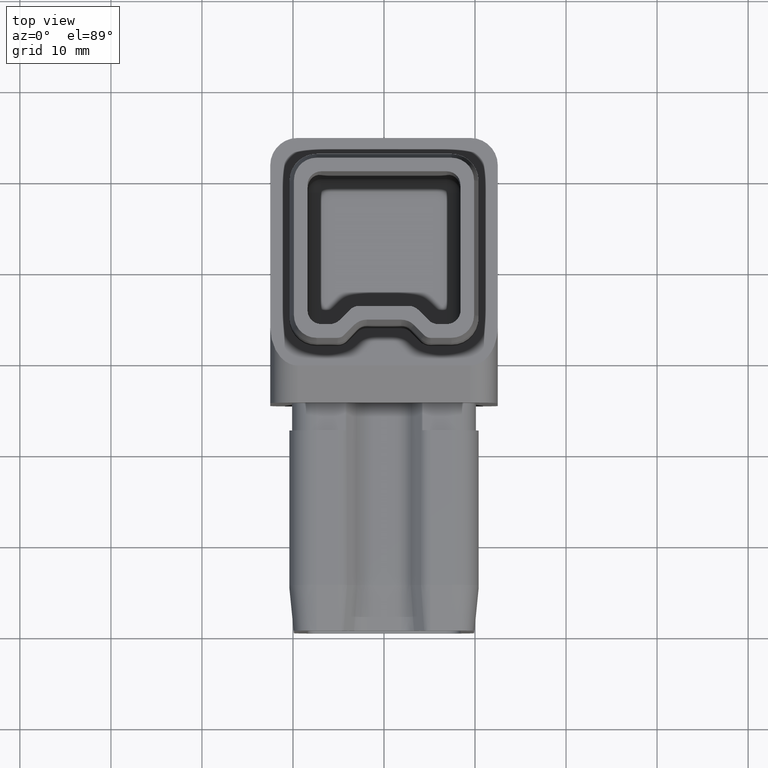
[diagram: clean part render]
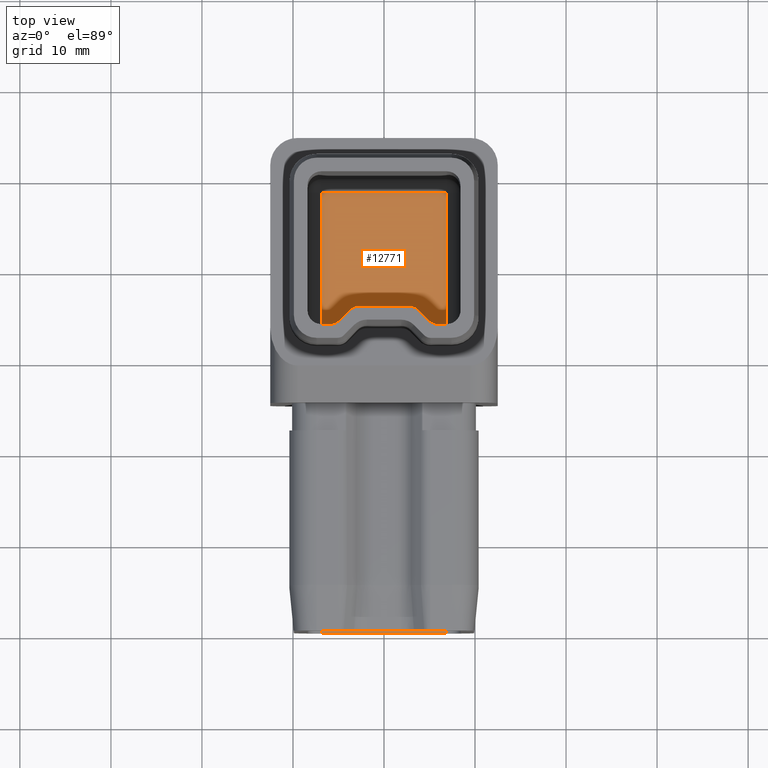
[diagram: same view with one face highlighted and labeled with its STEP entity id]
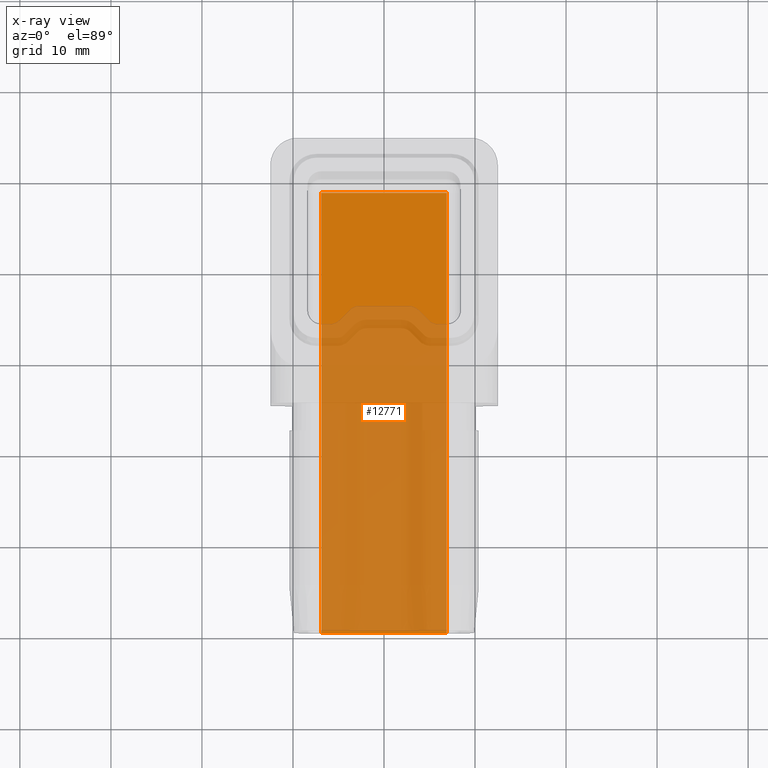
[diagram: x-ray of the same camera — body ghosted, the highlighted face saturated]
A machine part, top view. The second image highlights one B-rep face of the part: STEP entity #12771.
The next image is the same camera in x-ray: the body ghosted, the highlighted face saturated — about 72% of this face is hidden behind the body in this view.
In plain terms, the highlighted planar face has unit normal (-0, 0, 1).
Its self-contained STEP definition (entity closure, byte-faithful):
#189 = CARTESIAN_POINT ( 'NONE',  ( 6.900000000000002100, 8.900000000000000400, -10.40000000000000200 ) ) ;
#843 = EDGE_CURVE ( 'NONE', #24859, #24540, #6596, .T. ) ;
#1132 = PLANE ( 'NONE',  #8165 ) ;
#1730 = ORIENTED_EDGE ( 'NONE', *, *, #6273, .T. ) ;
#1785 = LINE ( 'NONE', #22504, #8536 ) ;
#3545 = VECTOR ( 'NONE', #19524, 1000.000000000000000 ) ;
#3828 = VERTEX_POINT ( 'NONE', #5104 ) ;
#5104 = CARTESIAN_POINT ( 'NONE',  ( -6.899999999999995900, -39.50000000000000000, -10.40000000000001500 ) ) ;
#6273 = EDGE_CURVE ( 'NONE', #16150, #24859, #1785, .T. ) ;
#6596 = LINE ( 'NONE', #20219, #8434 ) ;
#7075 = CARTESIAN_POINT ( 'NONE',  ( 0.0000000000000000000, 0.0000000000000000000, -10.40000000000000200 ) ) ;
#7309 = VECTOR ( 'NONE', #7917, 1000.000000000000000 ) ;
#7746 = EDGE_CURVE ( 'NONE', #11672, #16150, #12543, .T. ) ;
#7917 = DIRECTION ( 'NONE',  ( -1.196361017915039200E-016, 1.000000000000000000, -0.0000000000000000000 ) ) ;
#8165 = AXIS2_PLACEMENT_3D ( 'NONE', #7075, #24451, #14818 ) ;
#8434 = VECTOR ( 'NONE', #22267, 1000.000000000000000 ) ;
#8461 = VERTEX_POINT ( 'NONE', #15564 ) ;
#8536 = VECTOR ( 'NONE', #16377, 1000.000000000000000 ) ;
#8736 = ORIENTED_EDGE ( 'NONE', *, *, #15510, .T. ) ;
#9200 = ORIENTED_EDGE ( 'NONE', *, *, #7746, .T. ) ;
#10950 = DIRECTION ( 'NONE',  ( -1.196361017915039200E-016, 1.000000000000000000, -0.0000000000000000000 ) ) ;
#11323 = DIRECTION ( 'NONE',  ( 1.196361017915039200E-016, -1.000000000000000000, 0.0000000000000000000 ) ) ;
#11426 = CARTESIAN_POINT ( 'NONE',  ( -8.400000000000002100, -39.50000000000000000, -10.40000000000001500 ) ) ;
#11480 = VECTOR ( 'NONE', #10950, 1000.000000000000000 ) ;
#11672 = VERTEX_POINT ( 'NONE', #23630 ) ;
#12122 = CARTESIAN_POINT ( 'NONE',  ( 6.900000000000002100, 10.40000000000000000, -10.40000000000000200 ) ) ;
#12543 = LINE ( 'NONE', #12122, #7309 ) ;
#12771 = ADVANCED_FACE ( 'NONE', ( #24009 ), #1132, .T. ) ;
#13952 = ORIENTED_EDGE ( 'NONE', *, *, #843, .T. ) ;
#14818 = DIRECTION ( 'NONE',  ( 1.000000000000000000, 0.0000000000000000000, 0.0000000000000000000 ) ) ;
#15510 = EDGE_CURVE ( 'NONE', #8461, #11672, #21956, .T. ) ;
#15564 = CARTESIAN_POINT ( 'NONE',  ( 6.900000000000008300, -39.50000000000000000, -10.40000000000001500 ) ) ;
#16150 = VERTEX_POINT ( 'NONE', #189 ) ;
#16184 = ORIENTED_EDGE ( 'NONE', *, *, #24744, .T. ) ;
#16377 = DIRECTION ( 'NONE',  ( -1.000000000000000000, 0.0000000000000000000, 0.0000000000000000000 ) ) ;
#17543 = ORIENTED_EDGE ( 'NONE', *, *, #21711, .F. ) ;
#17790 = CARTESIAN_POINT ( 'NONE',  ( -6.900000000000000400, 8.900000000000000400, -10.40000000000000200 ) ) ;
#17792 = EDGE_LOOP ( 'NONE', ( #17543, #8736, #9200, #1730, #13952, #16184 ) ) ;
#19524 = DIRECTION ( 'NONE',  ( -1.000000000000000000, 0.0000000000000000000, 0.0000000000000000000 ) ) ;
#19597 = LINE ( 'NONE', #11426, #3545 ) ;
#20219 = CARTESIAN_POINT ( 'NONE',  ( -6.899999999999998600, -14.50000000000000200, -10.40000000000000200 ) ) ;
#21044 = CARTESIAN_POINT ( 'NONE',  ( 6.900000000000003900, -9.500000000000001800, -10.40000000000000200 ) ) ;
#21485 = LINE ( 'NONE', #23448, #22073 ) ;
#21603 = CARTESIAN_POINT ( 'NONE',  ( -6.899999999999998600, -9.499999999999998200, -10.40000000000000200 ) ) ;
#21711 = EDGE_CURVE ( 'NONE', #8461, #3828, #19597, .T. ) ;
#21956 = LINE ( 'NONE', #21044, #11480 ) ;
#22073 = VECTOR ( 'NONE', #11323, 1000.000000000000000 ) ;
#22267 = DIRECTION ( 'NONE',  ( 1.196361017915039200E-016, -1.000000000000000000, 0.0000000000000000000 ) ) ;
#22504 = CARTESIAN_POINT ( 'NONE',  ( -8.400000000000000400, 8.900000000000000400, -10.40000000000000200 ) ) ;
#23448 = CARTESIAN_POINT ( 'NONE',  ( -6.899999999999995900, -39.50000000000000000, -10.40000000000000200 ) ) ;
#23630 = CARTESIAN_POINT ( 'NONE',  ( 6.900000000000003900, -9.499999999999998200, -10.40000000000000200 ) ) ;
#24009 = FACE_OUTER_BOUND ( 'NONE', #17792, .T. ) ;
#24451 = DIRECTION ( 'NONE',  ( -0.0000000000000000000, 0.0000000000000000000, 1.000000000000000000 ) ) ;
#24540 = VERTEX_POINT ( 'NONE', #21603 ) ;
#24744 = EDGE_CURVE ( 'NONE', #24540, #3828, #21485, .T. ) ;
#24859 = VERTEX_POINT ( 'NONE', #17790 ) ;